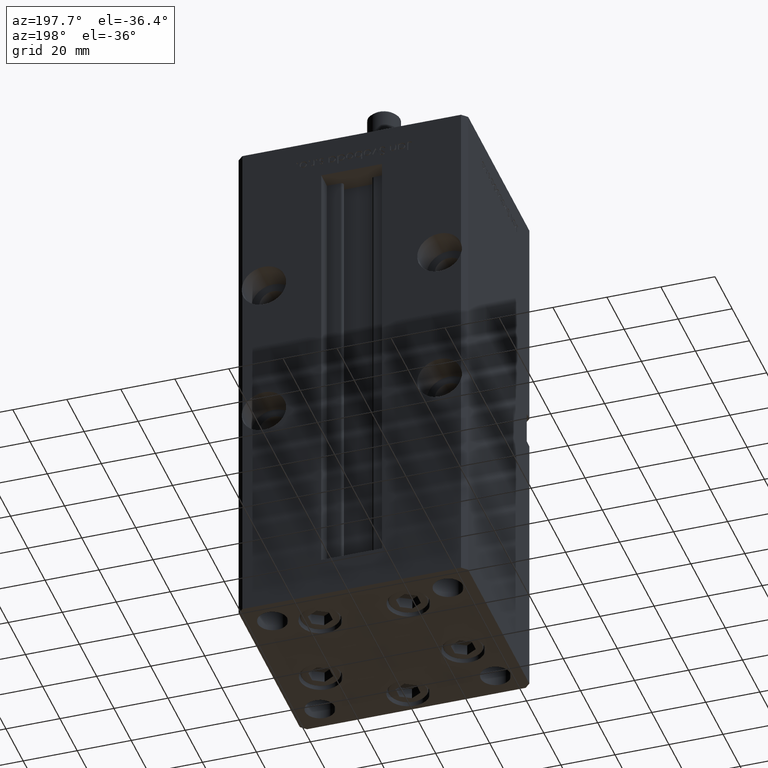
[diagram: clean part render]
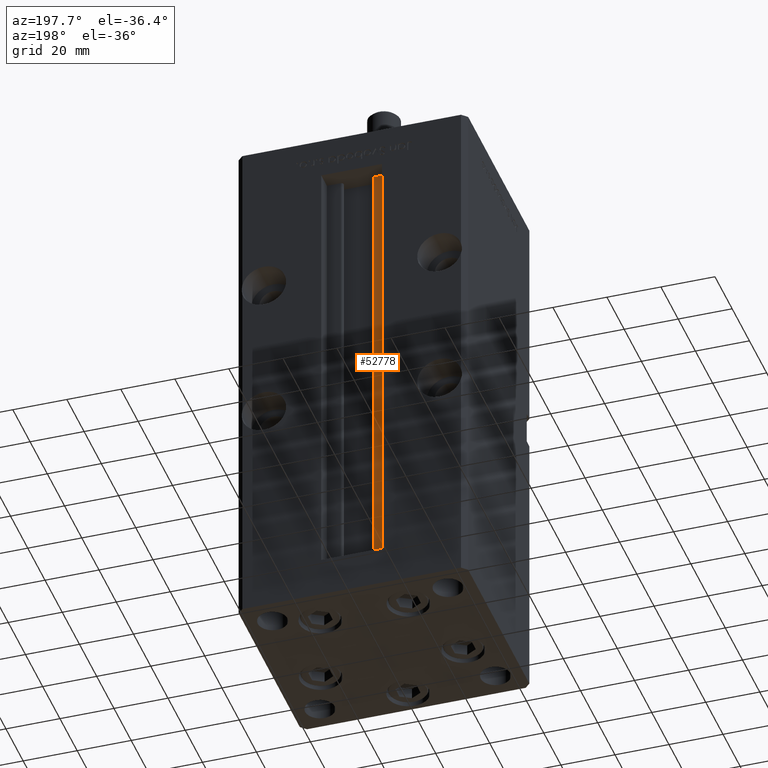
[diagram: same view with one face highlighted and labeled with its STEP entity id]
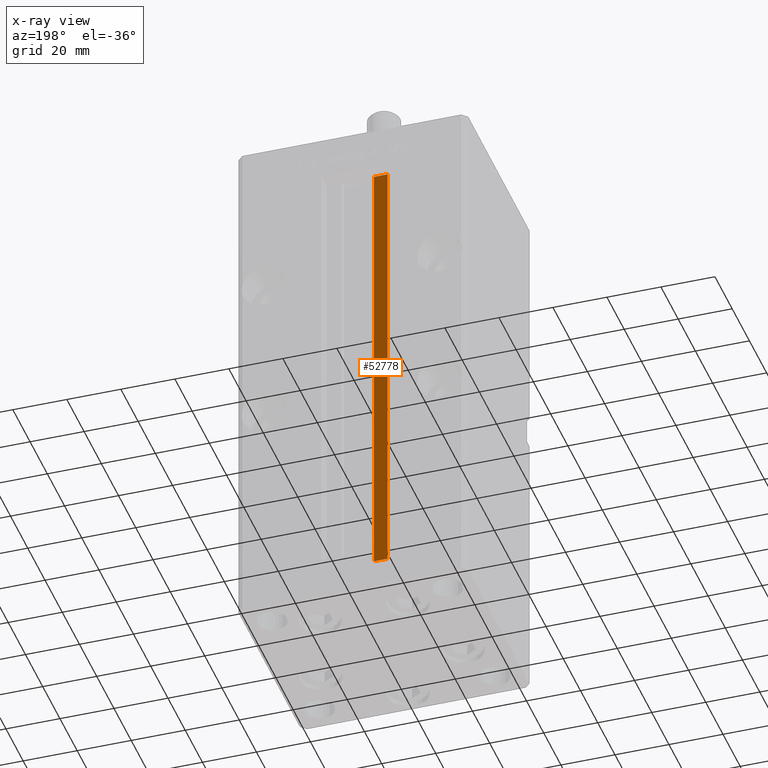
[diagram: x-ray of the same camera — body ghosted, the highlighted face saturated]
A machine part, auxiliary view. The second image highlights one B-rep face of the part: STEP entity #52778.
The next image is the same camera in x-ray: the body ghosted, the highlighted face saturated — about 0% of this face is hidden behind the body in this view.
In plain terms, the highlighted planar face has unit normal (0, -1, 0).
Its self-contained STEP definition (entity closure, byte-faithful):
#755 = EDGE_CURVE ( 'NONE', #7577, #47161, #49875, .T. ) ;
#2855 = CARTESIAN_POINT ( 'NONE',  ( -6.183333333333997928, 31.00000000000000000, 168.5000000000000000 ) ) ;
#6662 = VECTOR ( 'NONE', #34990, 1000.000000000000000 ) ;
#7577 = VERTEX_POINT ( 'NONE', #15316 ) ;
#7809 = CARTESIAN_POINT ( 'NONE',  ( -11.24999999999999822, 31.00000000000000000, 0.000000000000000000 ) ) ;
#8058 = CARTESIAN_POINT ( 'NONE',  ( -6.183333333333997928, 31.00000000000000000, 0.000000000000000000 ) ) ;
#9758 = ORIENTED_EDGE ( 'NONE', *, *, #755, .F. ) ;
#14368 = ORIENTED_EDGE ( 'NONE', *, *, #30203, .F. ) ;
#15316 = CARTESIAN_POINT ( 'NONE',  ( -11.24999999999999822, 31.00000000000000000, 0.000000000000000000 ) ) ;
#18741 = LINE ( 'NONE', #43759, #6662 ) ;
#19623 = EDGE_CURVE ( 'NONE', #7577, #28431, #49891, .T. ) ;
#21559 = VERTEX_POINT ( 'NONE', #2855 ) ;
#24291 = DIRECTION ( 'NONE',  ( -1.000000000000000000, 0.000000000000000000, 0.000000000000000000 ) ) ;
#26845 = FACE_OUTER_BOUND ( 'NONE', #47755, .T. ) ;
#28431 = VERTEX_POINT ( 'NONE', #43482 ) ;
#28463 = DIRECTION ( 'NONE',  ( -0.000000000000000000, -0.000000000000000000, 1.000000000000000000 ) ) ;
#28986 = DIRECTION ( 'NONE',  ( 0.000000000000000000, -1.000000000000000000, -0.000000000000000000 ) ) ;
#30203 = EDGE_CURVE ( 'NONE', #21559, #28431, #40754, .T. ) ;
#30351 = EDGE_CURVE ( 'NONE', #47161, #21559, #18741, .T. ) ;
#30695 = PLANE ( 'NONE',  #45272 ) ;
#34990 = DIRECTION ( 'NONE',  ( -0.000000000000000000, -0.000000000000000000, 1.000000000000000000 ) ) ;
#36676 = DIRECTION ( 'NONE',  ( 0.000000000000000000, 0.000000000000000000, -1.000000000000000000 ) ) ;
#38648 = ORIENTED_EDGE ( 'NONE', *, *, #30351, .F. ) ;
#39261 = ORIENTED_EDGE ( 'NONE', *, *, #19623, .T. ) ;
#39802 = VECTOR ( 'NONE', #28463, 1000.000000000000000 ) ;
#40754 = LINE ( 'NONE', #41308, #44379 ) ;
#40862 = VECTOR ( 'NONE', #42180, 1000.000000000000000 ) ;
#41308 = CARTESIAN_POINT ( 'NONE',  ( 0.000000000000000000, 31.00000000000000000, 168.5000000000000000 ) ) ;
#41340 = CARTESIAN_POINT ( 'NONE',  ( -6.183333333333997928, 31.00000000000000000, 0.000000000000000000 ) ) ;
#42180 = DIRECTION ( 'NONE',  ( 1.000000000000000000, -0.000000000000000000, -0.000000000000000000 ) ) ;
#43482 = CARTESIAN_POINT ( 'NONE',  ( -11.24999999999999822, 31.00000000000000000, 168.5000000000000000 ) ) ;
#43759 = CARTESIAN_POINT ( 'NONE',  ( -6.183333333333997928, 31.00000000000000000, 0.000000000000000000 ) ) ;
#44379 = VECTOR ( 'NONE', #24291, 1000.000000000000000 ) ;
#44735 = CARTESIAN_POINT ( 'NONE',  ( -6.183333333333997928, 31.00000000000000000, 0.000000000000000000 ) ) ;
#45272 = AXIS2_PLACEMENT_3D ( 'NONE', #8058, #28986, #36676 ) ;
#47161 = VERTEX_POINT ( 'NONE', #44735 ) ;
#47755 = EDGE_LOOP ( 'NONE', ( #38648, #9758, #39261, #14368 ) ) ;
#49875 = LINE ( 'NONE', #41340, #40862 ) ;
#49891 = LINE ( 'NONE', #7809, #39802 ) ;
#52778 = ADVANCED_FACE ( 'NONE', ( #26845 ), #30695, .F. ) ;